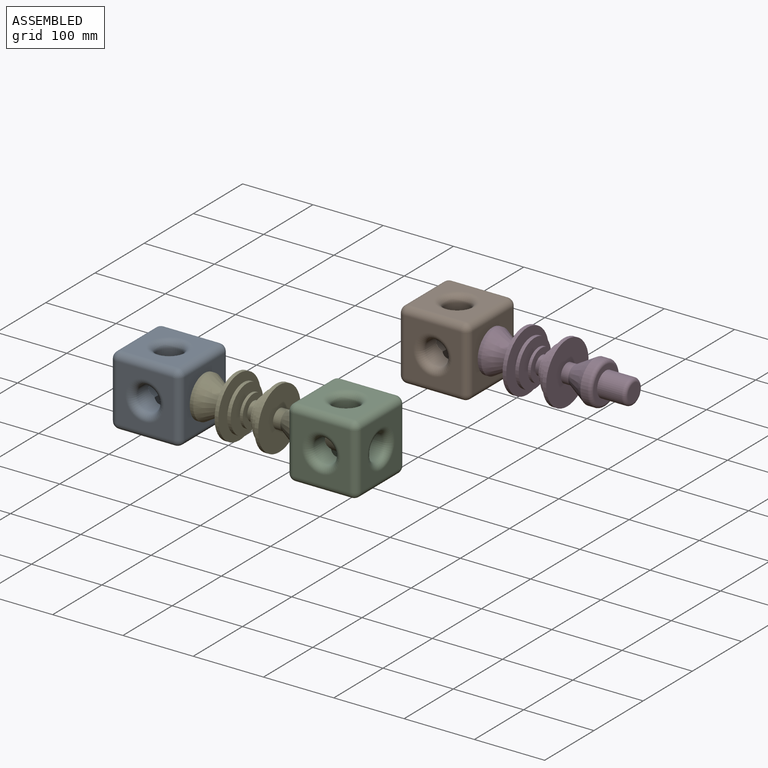
[diagram: assembled view]
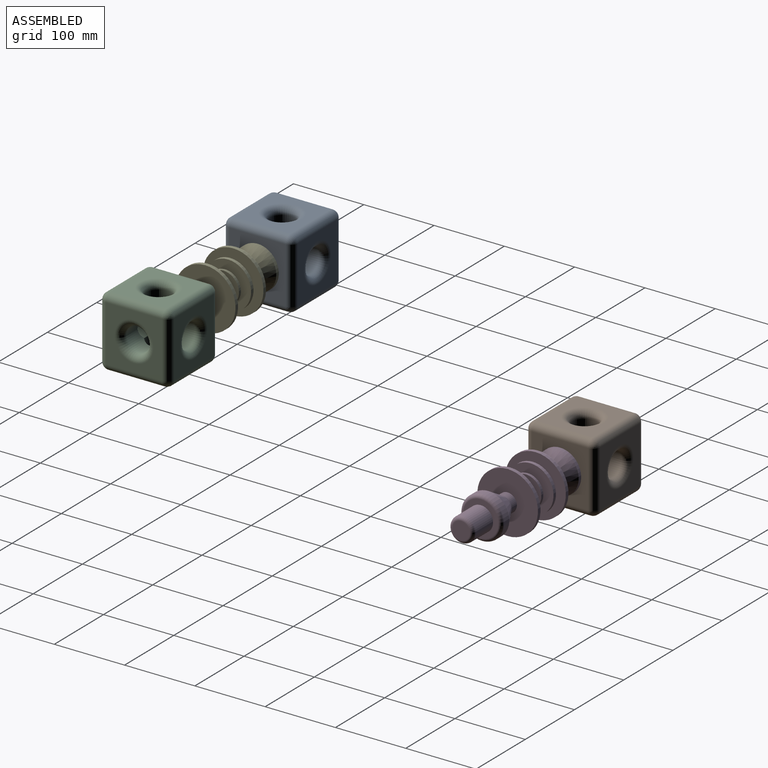
[diagram: assembled view, second angle]
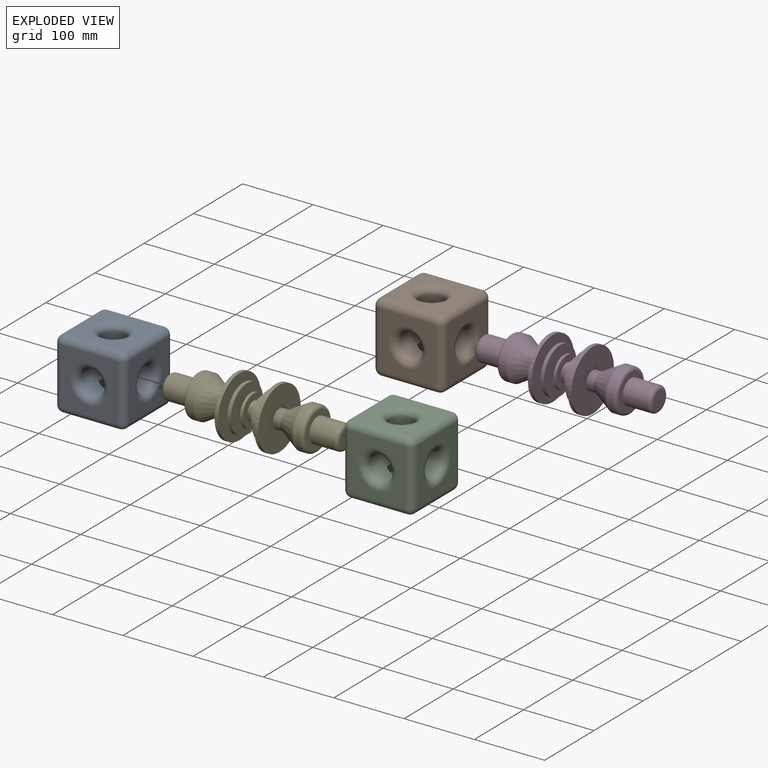
[diagram: exploded view]
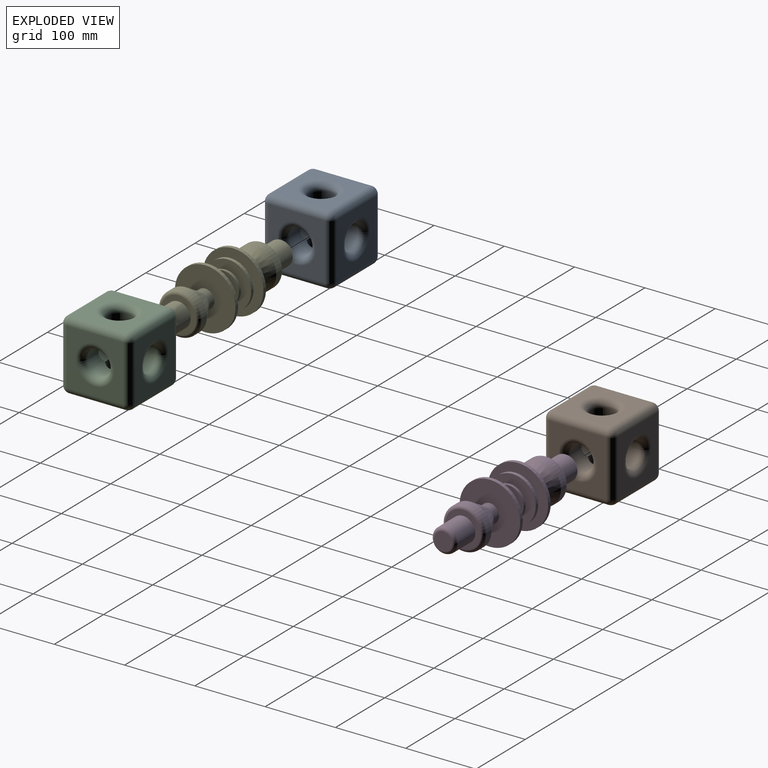
[diagram: exploded view, second angle]
ASSEMBLY  parts=5 mates=3
PART A: 38 faces, bbox 100x100x100 mm
  f0: cylinder r=17.5mm len=35mm, axis (0,-1,0), area 2665.8mm2, adj f8,f9,f11,f34,f35
  f1: plane 80x80mm, normal (0,0,-1), area 4024.2mm2, adj f20,f25,f28,f31,f36
  f2: plane 80x80mm, normal (1,0,0), area 4024.2mm2, adj f17,f26,f27,f31,f33
  f3: plane 80x80mm, normal (0,0,1), area 4024.2mm2, adj f12,f16,f17,f18,f37
  f4: plane 80x80mm, normal (-1,0,0), area 4024.2mm2, adj f12,f15,f19,f20,f32
  f5: plane 80x80mm, normal (0,-1,0), area 4024.2mm2, adj f11,f15,f16,f25,f26
  f6: plane 80x80mm, normal (0,1,0), area 4024.2mm2, adj f10,f18,f19,f27,f28
  f7: cylinder r=17.5mm len=35mm, axis (0,-1,0), area 2665.8mm2, adj f8,f9,f10,f34,f35
  f8: cylinder r=17.5mm len=35mm, axis (1,0,0), area 2665.8mm2, adj f0,f7,f33,f34,f35
  f9: cylinder r=17.5mm len=35mm, axis (1,0,0), area 2665.8mm2, adj f0,f7,f32,f34,f35
  f10: torus R=27.5mm, axis (0,-1,0), area 2085.8mm2, adj f6,f7
  f11: torus R=27.5mm, axis (0,-1,0), area 2085.8mm2, adj f0,f5
  f12: cylinder r=10mm len=80mm, axis (0,1,0), area 1256.6mm2, adj f3,f4,f13,f14
  f13: sphere r=10mm, area 157.1mm2, adj f12,f15,f16
  f14: sphere r=10mm, area 157.1mm2, adj f12,f18,f19
  f15: cylinder r=10mm len=80mm, axis (0,0,1), area 1256.6mm2, adj f4,f5,f13,f21
  f16: cylinder r=10mm len=80mm, axis (1,0,0), area 1256.6mm2, adj f3,f5,f13,f22
  f17: cylinder r=10mm len=80mm, axis (0,-1,0), area 1256.6mm2, adj f2,f3,f22,f23
  f18: cylinder r=10mm len=80mm, axis (-1,0,0), area 1256.6mm2, adj f3,f6,f14,f23
  f19: cylinder r=10mm len=80mm, axis (0,0,-1), area 1256.6mm2, adj f4,f6,f14,f24
  f20: cylinder r=10mm len=80mm, axis (0,-1,0), area 1256.6mm2, adj f1,f4,f21,f24
  f21: sphere r=10mm, area 157.1mm2, adj f15,f20,f25
  f22: sphere r=10mm, area 157.1mm2, adj f16,f17,f26
  f23: sphere r=10mm, area 157.1mm2, adj f17,f18,f27
  f24: sphere r=10mm, area 157.1mm2, adj f19,f20,f28
  f25: cylinder r=10mm len=80mm, axis (-1,0,0), area 1256.6mm2, adj f1,f5,f21,f29
  f26: cylinder r=10mm len=80mm, axis (0,0,-1), area 1256.6mm2, adj f2,f5,f22,f29
  f27: cylinder r=10mm len=80mm, axis (0,0,1), area 1256.6mm2, adj f2,f6,f23,f30
  f28: cylinder r=10mm len=80mm, axis (1,0,0), area 1256.6mm2, adj f1,f6,f24,f30
  f29: sphere r=10mm, area 157.1mm2, adj f25,f26,f31
  f30: sphere r=10mm, area 157.1mm2, adj f27,f28,f31
  f31: cylinder r=10mm len=80mm, axis (0,1,0), area 1256.6mm2, adj f1,f2,f29,f30
  f32: torus R=27.5mm, axis (1,0,0), area 2085.8mm2, adj f4,f9
  f33: torus R=27.5mm, axis (1,0,0), area 2085.8mm2, adj f2,f8
  f34: cylinder r=17.5mm len=35mm, axis (0,0,1), area 2665.8mm2, adj f0,f7,f8,f9,f36
  f35: cylinder r=17.5mm len=35mm, axis (0,0,1), area 2665.8mm2, adj f0,f7,f8,f9,f37
  f36: torus R=27.5mm, axis (0,0,-1), area 2085.8mm2, adj f1,f34
  f37: torus R=27.5mm, axis (0,0,-1), area 2085.8mm2, adj f3,f35
PART B: same geometry as A
PART C: same geometry as A
PART D: 39 faces, bbox 251.2x86.3x86.3 mm
  f0: plane 25x25mm, normal (1,0,0), area 490.9mm2, adj f37
  f1: cylinder r=17.5mm len=35mm, axis (1,0,0), area 3848.5mm2, adj f2,f37
  f2: plane 50x50mm, normal (1,0,0), area 1001.4mm2, adj f1,f38
  f3: cylinder r=30mm len=60mm, axis (1,0,0), area 1892.3mm2, adj f4,f38
  f4: cone r=13.12mm half-angle=30.2deg, axis (1,0,0), area 4542.1mm2, adj f3,f5
  f5: cylinder r=13.12mm len=26.25mm, axis (1,0,0), area 870mm2, adj f4,f6
  f6: plane 86.26x86.26mm, normal (1,0,0), area 5302.5mm2, adj f5,f7
  f7: cylinder r=43.13mm len=86.26mm, axis (1,0,0), area 1429.4mm2, adj f6,f8
  f8: plane 86.26x86.26mm, normal (-1,0,0), area 5302.5mm2, adj f7,f9
  f9: cylinder r=13.12mm len=26.25mm, axis (1,0,0), area 460.6mm2, adj f8,f10
  f10: plane 65.78x65.78mm, normal (1,0,0), area 2857.2mm2, adj f9,f11
  f11: cylinder r=32.89mm len=65.78mm, axis (1,0,0), area 1025.9mm2, adj f10,f12
  f12: plane 65.78x65.78mm, normal (-1,0,0), area 2857.2mm2, adj f11,f13
  f13: cylinder r=13.12mm len=26.25mm, axis (1,0,0), area 460.6mm2, adj f12,f14
  f14: plane 44.68x44.68mm, normal (1,0,0), area 1026.7mm2, adj f13,f15
  f15: cylinder r=22.34mm len=44.68mm, axis (1,0,0), area 566.2mm2, adj f14,f16
  f16: plane 44.68x44.68mm, normal (-1,0,0), area 1026.7mm2, adj f15,f17
  f17: cylinder r=13.12mm len=26.25mm, axis (1,0,0), area 921.2mm2, adj f16,f34
  f18: plane 25x25mm, normal (-1,0,0), area 490.9mm2, adj f36
  f19: cylinder r=17.5mm len=35mm, axis (-1,0,0), area 3848.5mm2, adj f20,f36
  f20: plane 50x50mm, normal (-1,0,0), area 1001.4mm2, adj f19,f35
  f21: cylinder r=30mm len=60mm, axis (-1,0,0), area 1892.3mm2, adj f22,f35
  f22: cone r=13.12mm half-angle=30.2deg, axis (-1,0,0), area 4542.1mm2, adj f21,f23
  f23: cylinder r=13.12mm len=26.25mm, axis (-1,0,0), area 870mm2, adj f22,f24
  f24: plane 86.26x86.26mm, normal (-1,0,0), area 5302.5mm2, adj f23,f25
  f25: cylinder r=43.13mm len=86.26mm, axis (-1,0,0), area 1429.4mm2, adj f24,f26
  f26: plane 86.26x86.26mm, normal (1,0,0), area 5302.5mm2, adj f25,f27
  f27: cylinder r=13.12mm len=26.25mm, axis (-1,0,0), area 460.6mm2, adj f26,f28
  f28: plane 65.78x65.78mm, normal (-1,0,0), area 2857.2mm2, adj f27,f29
  f29: cylinder r=32.89mm len=65.78mm, axis (-1,0,0), area 1025.9mm2, adj f28,f30
  f30: plane 65.78x65.78mm, normal (1,0,0), area 2857.2mm2, adj f29,f31
  f31: cylinder r=13.12mm len=26.25mm, axis (-1,0,0), area 460.6mm2, adj f30,f32
  f32: plane 44.68x44.68mm, normal (-1,0,0), area 1026.7mm2, adj f31,f33
  f33: cylinder r=22.34mm len=44.68mm, axis (-1,0,0), area 566.2mm2, adj f32,f34
  f34: plane 44.68x44.68mm, normal (1,0,0), area 1026.7mm2, adj f17,f33
  f35: torus R=25mm, axis (1,0,0), area 1390.8mm2, adj f20,f21
  f36: torus R=12.5mm, axis (1,0,0), area 773.9mm2, adj f18,f19
  f37: torus R=12.5mm, axis (-1,0,0), area 773.9mm2, adj f0,f1
  f38: torus R=25mm, axis (-1,0,0), area 1390.8mm2, adj f2,f3
PART E: same geometry as D
PLACE A rot(axis=(0,1,0),90deg) t=(-345.66,2.32,90.02)mm
PLACE B rot(axis=(0.07,-0.73,-0.68),0deg) t=(-272.92,483.47,-15.53)mm
PLACE C t=(-94.48,2.32,90.02)mm
PLACE D rot(axis=(0.07,-0.73,-0.68),0deg) t=(-147.33,483.47,-15.53)mm
PLACE E t=(-220.07,2.32,90.02)mm
MATE fastened C.f32 <-> E.f1  axis (1,0,0) through (-134.48,2.32,90.02)mm
MATE fastened A.f34 <-> E.f1  axis (-1,0,0) through (-305.66,2.32,90.02)mm
MATE fastened B.f33 <-> D.f1  axis (1,0,0) through (-232.92,483.47,-15.53)mm
